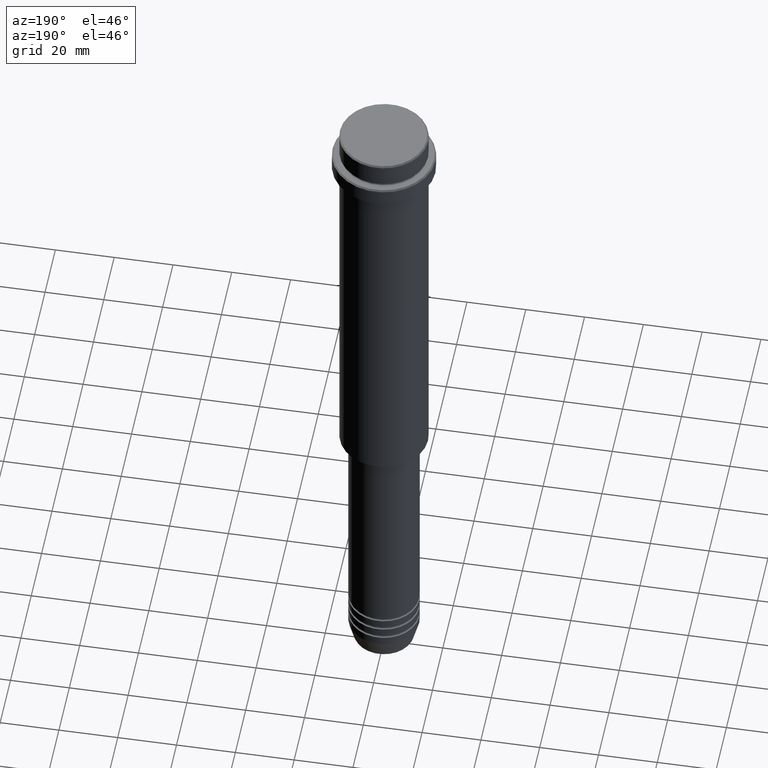
[diagram: clean part render]
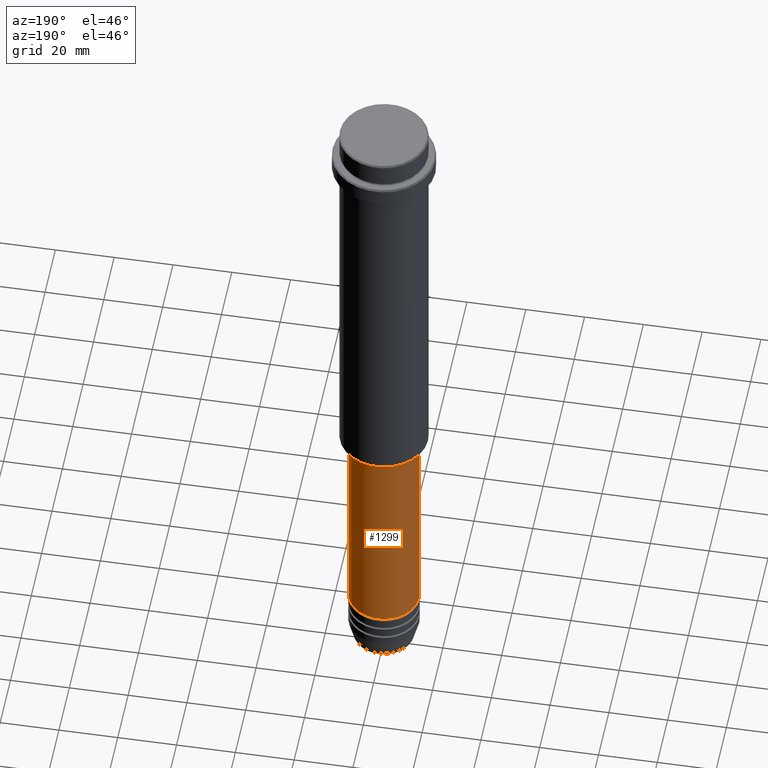
[diagram: same view with one face highlighted and labeled with its STEP entity id]
A machine part, auxiliary view. The second image highlights one B-rep face of the part: STEP entity #1299.
In plain terms, the highlighted cylindrical surface (edge-blend (fillet) strip) has radius 12 mm, axis along (-0, -0, 1).
Its self-contained STEP definition (entity closure, byte-faithful):
#53 = CIRCLE ( 'NONE', #973, 11.99999999999999822 ) ;
#64 = DIRECTION ( 'NONE',  ( 1.000000000000000000, 0.000000000000000000, 0.000000000000000000 ) ) ;
#108 = ORIENTED_EDGE ( 'NONE', *, *, #578, .F. ) ;
#111 = ORIENTED_EDGE ( 'NONE', *, *, #120, .T. ) ;
#120 = EDGE_CURVE ( 'NONE', #1349, #176, #605, .T. ) ;
#125 = AXIS2_PLACEMENT_3D ( 'NONE', #1043, #1370, #835 ) ;
#172 = VECTOR ( 'NONE', #728, 1000.000000000000000 ) ;
#174 = CARTESIAN_POINT ( 'NONE',  ( 11.99999999999999822, 0.000000000000000000, -146.0000000000000000 ) ) ;
#176 = VERTEX_POINT ( 'NONE', #881 ) ;
#199 = EDGE_CURVE ( 'NONE', #1349, #575, #559, .T. ) ;
#326 = CYLINDRICAL_SURFACE ( 'NONE', #864, 12.00000000000000000 ) ;
#340 = DIRECTION ( 'NONE',  ( -0.000000000000000000, -0.000000000000000000, 1.000000000000000000 ) ) ;
#420 = DIRECTION ( 'NONE',  ( -0.000000000000000000, -0.000000000000000000, 1.000000000000000000 ) ) ;
#443 = ORIENTED_EDGE ( 'NONE', *, *, #1134, .T. ) ;
#511 = CARTESIAN_POINT ( 'NONE',  ( -12.00000000000000000, 1.469576158976823947E-15, 0.000000000000000000 ) ) ;
#558 = EDGE_LOOP ( 'NONE', ( #111, #443, #108, #795 ) ) ;
#559 = LINE ( 'NONE', #1191, #1336 ) ;
#575 = VERTEX_POINT ( 'NONE', #174 ) ;
#578 = EDGE_CURVE ( 'NONE', #575, #1182, #53, .T. ) ;
#605 = CIRCLE ( 'NONE', #125, 12.00000000000000000 ) ;
#615 = DIRECTION ( 'NONE',  ( -0.000000000000000000, -0.000000000000000000, 1.000000000000000000 ) ) ;
#728 = DIRECTION ( 'NONE',  ( -0.000000000000000000, -0.000000000000000000, 1.000000000000000000 ) ) ;
#734 = CARTESIAN_POINT ( 'NONE',  ( -11.99999999999999822, 1.469576158976823750E-15, -146.0000000000000000 ) ) ;
#762 = CARTESIAN_POINT ( 'NONE',  ( 0.000000000000000000, 0.000000000000000000, 0.000000000000000000 ) ) ;
#774 = DIRECTION ( 'NONE',  ( 1.000000000000000000, 0.000000000000000000, 0.000000000000000000 ) ) ;
#795 = ORIENTED_EDGE ( 'NONE', *, *, #199, .F. ) ;
#835 = DIRECTION ( 'NONE',  ( 1.000000000000000000, 0.000000000000000000, 0.000000000000000000 ) ) ;
#864 = AXIS2_PLACEMENT_3D ( 'NONE', #762, #340, #774 ) ;
#881 = CARTESIAN_POINT ( 'NONE',  ( -12.00000000000000000, 1.469576158976823947E-15, -220.9999999999998863 ) ) ;
#924 = CARTESIAN_POINT ( 'NONE',  ( 12.00000000000000000, 0.000000000000000000, -220.9999999999998863 ) ) ;
#973 = AXIS2_PLACEMENT_3D ( 'NONE', #1052, #615, #64 ) ;
#1043 = CARTESIAN_POINT ( 'NONE',  ( 0.000000000000000000, 0.000000000000000000, -220.9999999999998863 ) ) ;
#1052 = CARTESIAN_POINT ( 'NONE',  ( 0.000000000000000000, 0.000000000000000000, -146.0000000000000000 ) ) ;
#1086 = LINE ( 'NONE', #511, #172 ) ;
#1134 = EDGE_CURVE ( 'NONE', #176, #1182, #1086, .T. ) ;
#1182 = VERTEX_POINT ( 'NONE', #734 ) ;
#1191 = CARTESIAN_POINT ( 'NONE',  ( 12.00000000000000000, 0.000000000000000000, 0.000000000000000000 ) ) ;
#1299 = ADVANCED_FACE ( 'NONE', ( #1305 ), #326, .T. ) ;
#1305 = FACE_OUTER_BOUND ( 'NONE', #558, .T. ) ;
#1336 = VECTOR ( 'NONE', #420, 1000.000000000000000 ) ;
#1349 = VERTEX_POINT ( 'NONE', #924 ) ;
#1370 = DIRECTION ( 'NONE',  ( -0.000000000000000000, -0.000000000000000000, 1.000000000000000000 ) ) ;